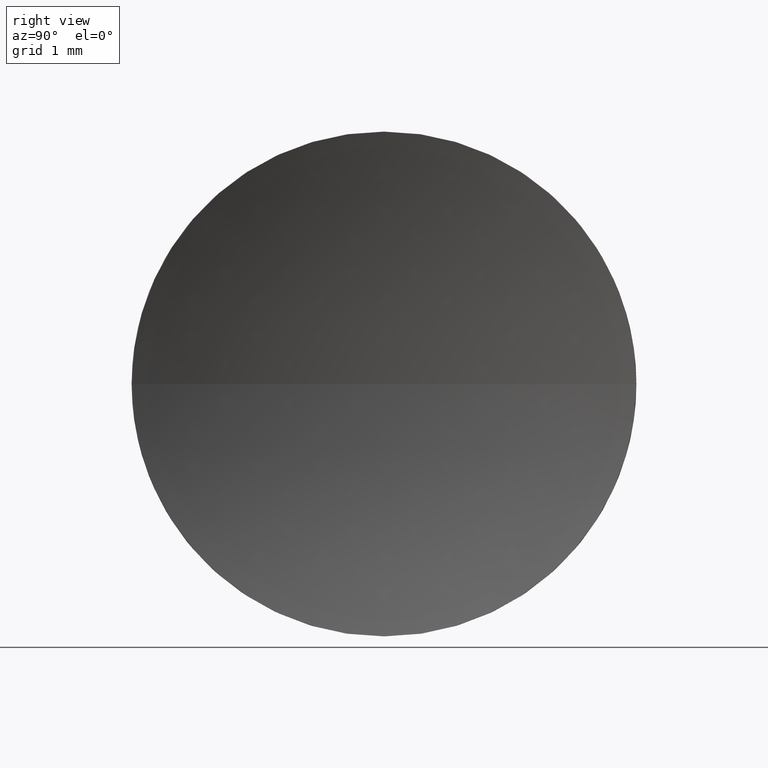
[diagram: clean part render]
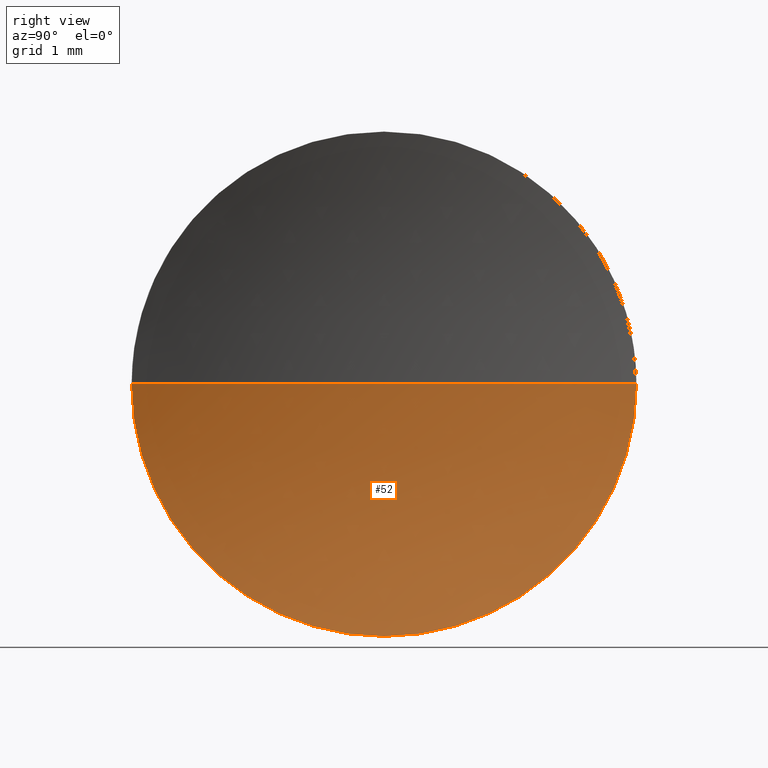
[diagram: same view with one face highlighted and labeled with its STEP entity id]
A machine part, right view. The second image highlights one B-rep face of the part: STEP entity #52.
In plain terms, the highlighted spherical surface has radius 10.37 mm.
Its self-contained STEP definition (entity closure, byte-faithful):
#1 = CARTESIAN_POINT ( 'NONE',  ( 34.04218947520227100, 13.04452057459747900, 0.0000000000000000000 ) ) ;
#3 = DIRECTION ( 'NONE',  ( -1.000000000000000000, -0.0000000000000000000, -0.0000000000000000000 ) ) ;
#5 = DIRECTION ( 'NONE',  ( 0.0000000000000000000, 0.0000000000000000000, 1.000000000000000000 ) ) ;
#7 = AXIS2_PLACEMENT_3D ( 'NONE', #50, #3, #176 ) ;
#8 = EDGE_CURVE ( 'NONE', #77, #24, #180, .T. ) ;
#10 = VERTEX_POINT ( 'NONE', #35 ) ;
#13 = SPHERICAL_SURFACE ( 'NONE', #16, 10.36999999999999400 ) ;
#16 = AXIS2_PLACEMENT_3D ( 'NONE', #39, #130, #182 ) ;
#22 = CIRCLE ( 'NONE', #7, 3.150000000000001700 ) ;
#23 = CIRCLE ( 'NONE', #86, 10.36999999999999400 ) ;
#24 = VERTEX_POINT ( 'NONE', #73 ) ;
#32 = DIRECTION ( 'NONE',  ( 0.0000000000000000000, 0.0000000000000000000, -1.000000000000000000 ) ) ;
#35 = CARTESIAN_POINT ( 'NONE',  ( 24.16218947520228300, 16.19452057459748000, 3.857637417314165200E-016 ) ) ;
#36 = CARTESIAN_POINT ( 'NONE',  ( 24.16218947520228300, 13.04452057459747900, -3.150000000000001700 ) ) ;
#39 = CARTESIAN_POINT ( 'NONE',  ( 34.04218947520227100, 13.04452057459747900, 0.0000000000000000000 ) ) ;
#42 = ORIENTED_EDGE ( 'NONE', *, *, #8, .F. ) ;
#47 = DIRECTION ( 'NONE',  ( 0.0000000000000000000, -1.000000000000000000, -1.224646799147353200E-016 ) ) ;
#50 = CARTESIAN_POINT ( 'NONE',  ( 24.16218947520228300, 13.04452057459747900, 0.0000000000000000000 ) ) ;
#52 = ADVANCED_FACE ( 'NONE', ( #149 ), #13, .F. ) ;
#54 = ORIENTED_EDGE ( 'NONE', *, *, #118, .F. ) ;
#71 = CARTESIAN_POINT ( 'NONE',  ( 24.16218947520228300, 13.04452057459747900, 0.0000000000000000000 ) ) ;
#73 = CARTESIAN_POINT ( 'NONE',  ( 24.16218947520228300, 9.894520574597477100, 0.0000000000000000000 ) ) ;
#74 = AXIS2_PLACEMENT_3D ( 'NONE', #71, #179, #5 ) ;
#77 = VERTEX_POINT ( 'NONE', #36 ) ;
#86 = AXIS2_PLACEMENT_3D ( 'NONE', #115, #32, #139 ) ;
#103 = AXIS2_PLACEMENT_3D ( 'NONE', #1, #107, #47 ) ;
#105 = EDGE_CURVE ( 'NONE', #10, #77, #22, .T. ) ;
#107 = DIRECTION ( 'NONE',  ( 0.0000000000000000000, -1.224646799147353200E-016, 1.000000000000000000 ) ) ;
#108 = ORIENTED_EDGE ( 'NONE', *, *, #105, .F. ) ;
#115 = CARTESIAN_POINT ( 'NONE',  ( 34.04218947520227100, 13.04452057459747900, 0.0000000000000000000 ) ) ;
#118 = EDGE_CURVE ( 'NONE', #24, #171, #23, .T. ) ;
#130 = DIRECTION ( 'NONE',  ( 0.0000000000000000000, 0.0000000000000000000, 1.000000000000000000 ) ) ;
#131 = ORIENTED_EDGE ( 'NONE', *, *, #184, .T. ) ;
#134 = CARTESIAN_POINT ( 'NONE',  ( 23.67218947520228100, 13.04452057459747900, 0.0000000000000000000 ) ) ;
#139 = DIRECTION ( 'NONE',  ( -1.000000000000000000, 0.0000000000000000000, 0.0000000000000000000 ) ) ;
#146 = CIRCLE ( 'NONE', #103, 10.36999999999999400 ) ;
#147 = EDGE_LOOP ( 'NONE', ( #108, #131, #54, #42 ) ) ;
#149 = FACE_OUTER_BOUND ( 'NONE', #147, .T. ) ;
#171 = VERTEX_POINT ( 'NONE', #134 ) ;
#176 = DIRECTION ( 'NONE',  ( 0.0000000000000000000, 0.0000000000000000000, 1.000000000000000000 ) ) ;
#179 = DIRECTION ( 'NONE',  ( -1.000000000000000000, -0.0000000000000000000, -0.0000000000000000000 ) ) ;
#180 = CIRCLE ( 'NONE', #74, 3.150000000000001700 ) ;
#182 = DIRECTION ( 'NONE',  ( 0.0000000000000000000, -1.000000000000000000, 0.0000000000000000000 ) ) ;
#184 = EDGE_CURVE ( 'NONE', #10, #171, #146, .T. ) ;